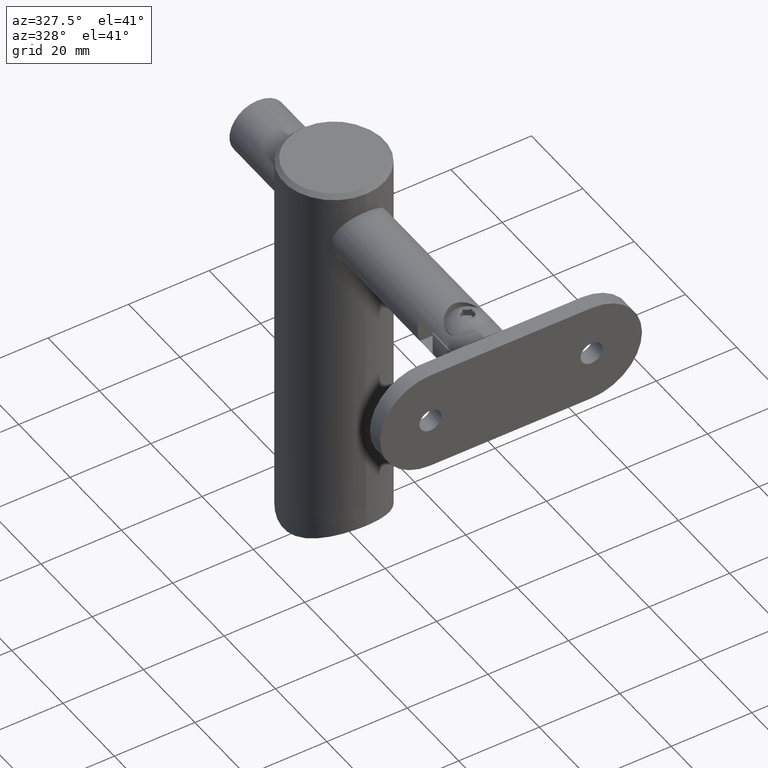
[diagram: clean part render]
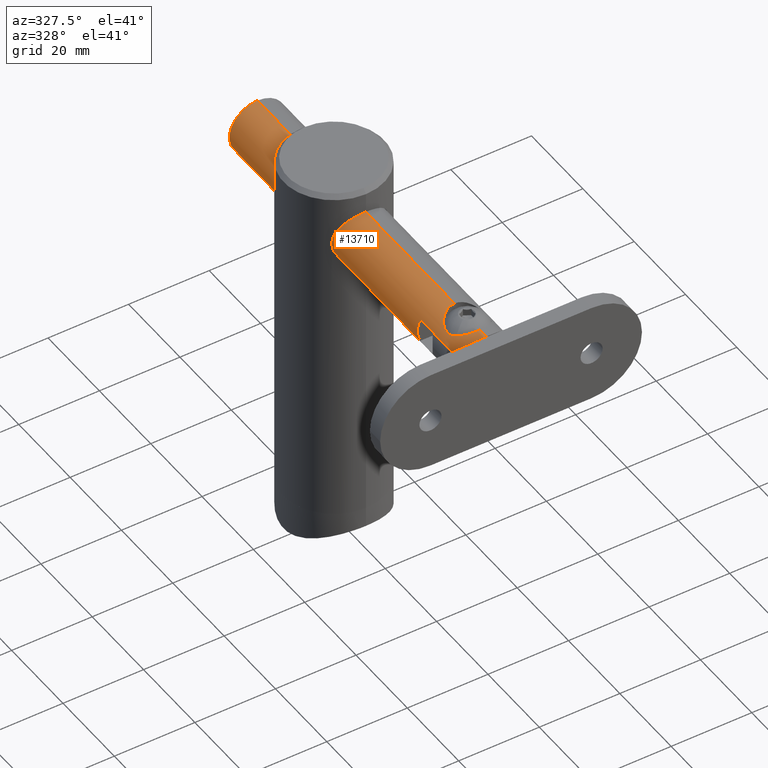
[diagram: same view with one face highlighted and labeled with its STEP entity id]
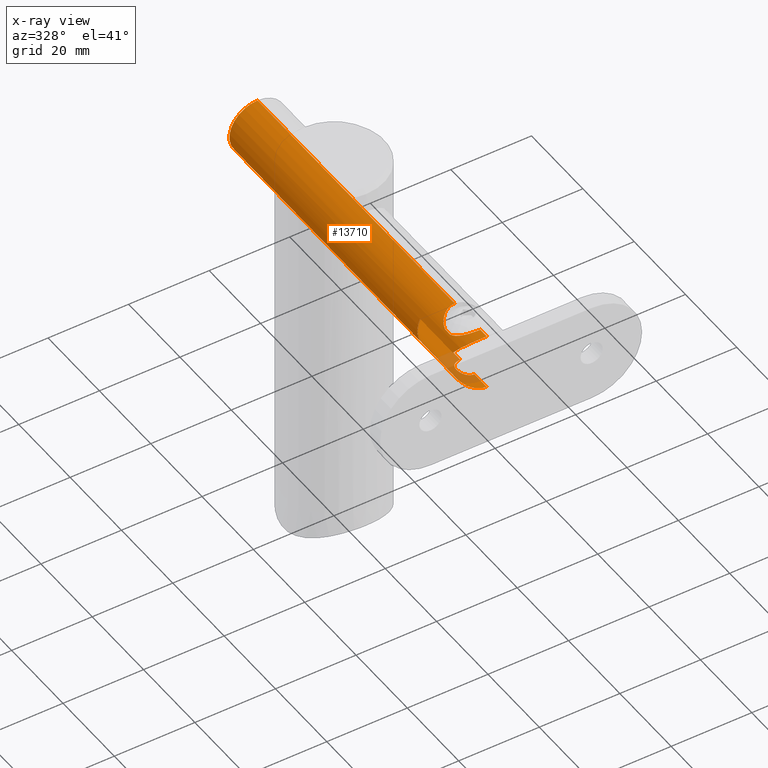
[diagram: x-ray of the same camera — body ghosted, the highlighted face saturated]
A machine part, auxiliary view. The second image highlights one B-rep face of the part: STEP entity #13710.
The next image is the same camera in x-ray: the body ghosted, the highlighted face saturated — about 3% of this face is hidden behind the body in this view.
In plain terms, the highlighted cylindrical surface (edge-blend (fillet) strip) has radius 7 mm, axis along (0, 1, -0).
Its self-contained STEP definition (entity closure, byte-faithful):
#6 = CARTESIAN_POINT ( 'NONE',  ( 3.659128661672553573, 88.58890854043285401, -5.976321217557578613 ) ) ;
#46 = VERTEX_POINT ( 'NONE', #10227 ) ;
#139 = CARTESIAN_POINT ( 'NONE',  ( 3.418568646372840636, 85.65932953649753756, 6.113182993975327051 ) ) ;
#250 = VECTOR ( 'NONE', #19612, 1000.000000000000000 ) ;
#258 = VECTOR ( 'NONE', #5741, 1000.000000000000000 ) ;
#275 = CARTESIAN_POINT ( 'NONE',  ( 4.549074066972394803, 84.09439828439076337, 5.322148887493237446 ) ) ;
#542 = EDGE_CURVE ( 'NONE', #17161, #1582, #8996, .T. ) ;
#594 = CARTESIAN_POINT ( 'NONE',  ( 1.385340874054284077, 79.61775460387927694, -6.863222432922680305 ) ) ;
#864 = CARTESIAN_POINT ( 'NONE',  ( 6.324555320336759934, 92.00000000000000000, -2.999999999999998224 ) ) ;
#939 = CARTESIAN_POINT ( 'NONE',  ( 6.324555320336759046, 92.00000000000000000, 3.000000000000001776 ) ) ;
#1408 = DIRECTION ( 'NONE',  ( 0.000000000000000000, 0.000000000000000000, -1.000000000000000000 ) ) ;
#1416 = CARTESIAN_POINT ( 'NONE',  ( 2.383564362003729009, 83.38312945700687351, -6.582530143251842603 ) ) ;
#1582 = VERTEX_POINT ( 'NONE', #19484 ) ;
#1586 = CARTESIAN_POINT ( 'NONE',  ( 4.928104915875101355, 87.75682723763087267, -5.009702542512038725 ) ) ;
#1640 = CARTESIAN_POINT ( 'NONE',  ( 4.195964117558555806, 88.27331444279705863, 5.612428878305045998 ) ) ;
#1686 = EDGE_CURVE ( 'NONE', #11354, #11957, #1867, .T. ) ;
#1719 = CARTESIAN_POINT ( 'NONE',  ( 2.271900956814452588, 86.46310504795086160, 6.626294361268984190 ) ) ;
#1771 = ORIENTED_EDGE ( 'NONE', *, *, #15771, .T. ) ;
#1811 = VERTEX_POINT ( 'NONE', #3476 ) ;
#1867 = B_SPLINE_CURVE_WITH_KNOTS ( 'NONE', 3,
 ( #19627, #5595, #16367, #6907, #10075, #3768, #594, #13259, #14832, #6978, #8553, #10144, #7185, #4047, #11931, #10414, #4119, #18245 ),
 .UNSPECIFIED., .F., .F.,
 ( 4, 2, 2, 2, 2, 2, 2, 2, 4 ),
 ( 0.008686211219438648781, 0.009228801938659589310, 0.009771392657880529839, 0.01031398337710147037, 0.01085657409632241263, 0.01139916481554335143, 0.01194175553476429369, 0.01248434625398523422, 0.01302693697320617475 ),
 .UNSPECIFIED. ) ;
#2051 = CIRCLE ( 'NONE', #16311, 7.000000000000000000 ) ;
#2075 = CARTESIAN_POINT ( 'NONE',  ( 1.185247000890846447, 77.13349136363962089, 6.905179976153642762 ) ) ;
#2263 = EDGE_CURVE ( 'NONE', #11354, #10373, #2400, .T. ) ;
#2400 = LINE ( 'NONE', #2796, #13826 ) ;
#2427 = CARTESIAN_POINT ( 'NONE',  ( 0.000000000000000000, 92.00000000000000000, -7.000000000000000000 ) ) ;
#2461 = FACE_OUTER_BOUND ( 'NONE', #13560, .T. ) ;
#2543 = AXIS2_PLACEMENT_3D ( 'NONE', #15531, #9162, #20089 ) ;
#2666 = VECTOR ( 'NONE', #8549, 1000.000000000000000 ) ;
#2796 = CARTESIAN_POINT ( 'NONE',  ( 0.000000000000000000, 92.00000000000000000, -7.000000000000000000 ) ) ;
#2805 = CARTESIAN_POINT ( 'NONE',  ( 0.000000000000000000, 73.50000000000000000, 0.000000000000000000 ) ) ;
#3047 = CARTESIAN_POINT ( 'NONE',  ( 4.466189705517495057, 88.11437112860704701, -5.429152875609549511 ) ) ;
#3165 = CARTESIAN_POINT ( 'NONE',  ( 3.658279339947478004, 88.58935219639676006, 5.976827340720561210 ) ) ;
#3211 = CARTESIAN_POINT ( 'NONE',  ( -3.948399029747518167E-20, 79.25000000000000000, -7.000000000000000000 ) ) ;
#3322 = CARTESIAN_POINT ( 'NONE',  ( 4.135962263691839169, 84.82324267745757140, 5.650367532654112068 ) ) ;
#3460 = CARTESIAN_POINT ( 'NONE',  ( -1.002435782524943925E-14, 89.50000000000011369, 7.000000000000127010 ) ) ;
#3476 = CARTESIAN_POINT ( 'NONE',  ( 6.324555320336759046, 73.50000000000000000, -3.000000000000000888 ) ) ;
#3542 = VECTOR ( 'NONE', #13515, 1000.000000000000000 ) ;
#3670 = CARTESIAN_POINT ( 'NONE',  ( 4.425366518078631017, 79.65602365136531660, 5.426733022158265918 ) ) ;
#3740 = CARTESIAN_POINT ( 'NONE',  ( 1.468537120180438471, 77.21149546779142270, 6.850130510910549475 ) ) ;
#3768 = CARTESIAN_POINT ( 'NONE',  ( 1.225103998554012197, 79.53138036620339335, -6.894013193630518899 ) ) ;
#4047 = CARTESIAN_POINT ( 'NONE',  ( 2.607791451429852359, 81.10876419045901287, -6.496532535767448380 ) ) ;
#4119 = CARTESIAN_POINT ( 'NONE',  ( 2.750000000000003109, 81.81877440831331683, -6.437196594791866566 ) ) ;
#4358 = VERTEX_POINT ( 'NONE', #9241 ) ;
#4375 = DIRECTION ( 'NONE',  ( -0.000000000000000000, -1.000000000000000000, -0.000000000000000000 ) ) ;
#4643 = CARTESIAN_POINT ( 'NONE',  ( 6.324555320336759934, 86.22911821679221589, -3.000000000000000000 ) ) ;
#4895 = CARTESIAN_POINT ( 'NONE',  ( 3.367878542067094472, 88.73778121761461080, 6.145840396532842753 ) ) ;
#4916 = CARTESIAN_POINT ( 'NONE',  ( 4.756889550426355306, 83.56607178810689618, 5.137250767919631755 ) ) ;
#4946 = EDGE_CURVE ( 'NONE', #1811, #7993, #14025, .T. ) ;
#5088 = CARTESIAN_POINT ( 'NONE',  ( 0.000000000000000000, 0.2499999999999863443, 0.000000000000000000 ) ) ;
#5143 = CARTESIAN_POINT ( 'NONE',  ( 4.898979485566356651, 80.99999999999998579, 5.000000000000000000 ) ) ;
#5154 = DIRECTION ( 'NONE',  ( 0.000000000000000000, 0.000000000000000000, 1.000000000000000000 ) ) ;
#5595 = CARTESIAN_POINT ( 'NONE',  ( 0.1808286411527179893, 79.25000000000001421, -7.000000000000000000 ) ) ;
#5597 = CARTESIAN_POINT ( 'NONE',  ( 2.184544099842922638, 83.67993846271104985, -6.651229151854177069 ) ) ;
#5741 = DIRECTION ( 'NONE',  ( 0.000000000000000000, 1.000000000000000000, 0.000000000000000000 ) ) ;
#6247 = CARTESIAN_POINT ( 'NONE',  ( 0.3624050733906260535, 89.50000000000005684, 7.000000000000029310 ) ) ;
#6602 = CARTESIAN_POINT ( 'NONE',  ( 2.763207991384557971, 86.17678371752325006, 6.436924150252826493 ) ) ;
#6658 = CARTESIAN_POINT ( 'NONE',  ( 3.975101583808372308, 85.04534998923310241, 5.765754370839145437 ) ) ;
#6676 = CARTESIAN_POINT ( 'NONE',  ( 4.756754455005335558, 80.43374851764012590, 5.137357217387365615 ) ) ;
#6737 = VERTEX_POINT ( 'NONE', #7531 ) ;
#6746 = CARTESIAN_POINT ( 'NONE',  ( 3.616946265727596366, 78.53685500906280481, 5.996925081911288480 ) ) ;
#6895 = LINE ( 'NONE', #864, #2666 ) ;
#6907 = CARTESIAN_POINT ( 'NONE',  ( 0.7204289598580253529, 79.33982706538533591, -6.965122200206522507 ) ) ;
#6978 = CARTESIAN_POINT ( 'NONE',  ( 2.072808109411296229, 80.18390104657881068, -6.687369939972429123 ) ) ;
#6979 = CARTESIAN_POINT ( 'NONE',  ( 8.572527594031473190E-16, 0.2499999999999863443, 7.000000000000000000 ) ) ;
#7185 = CARTESIAN_POINT ( 'NONE',  ( 2.469423849130405912, 80.77655266737600925, -6.550378393328252002 ) ) ;
#7188 = CARTESIAN_POINT ( 'NONE',  ( 1.385025910579861463, 84.38240070461296227, -6.863279530862734568 ) ) ;
#7531 = CARTESIAN_POINT ( 'NONE',  ( 8.572527598450923430E-16, 87.00000000000001421, 7.000000000000000000 ) ) ;
#7589 = CARTESIAN_POINT ( 'NONE',  ( 8.572527594031473190E-16, 92.00000000000000000, 7.000000000000000000 ) ) ;
#7617 = CARTESIAN_POINT ( 'NONE',  ( 1.208881161452609872E-16, 84.75000000000000000, -7.000000000000000000 ) ) ;
#7774 = CARTESIAN_POINT ( 'NONE',  ( 0.7243195160574963376, 89.47426048987152569, -6.971532369139149310 ) ) ;
#7838 = CARTESIAN_POINT ( 'NONE',  ( 1.772087270068707143, 89.29674524768790889, -6.774302909722829114 ) ) ;
#7885 = ORIENTED_EDGE ( 'NONE', *, *, #1686, .T. ) ;
#7993 = VERTEX_POINT ( 'NONE', #14888 ) ;
#8149 = LINE ( 'NONE', #7589, #20277 ) ;
#8172 = CARTESIAN_POINT ( 'NONE',  ( 4.839697460131368700, 83.29042142646889602, 5.058084285293767302 ) ) ;
#8190 = VERTEX_POINT ( 'NONE', #20156 ) ;
#8242 = CARTESIAN_POINT ( 'NONE',  ( 4.898979485566356651, 83.00000000000001421, 5.000000000000000000 ) ) ;
#8338 = DIRECTION ( 'NONE',  ( -0.000000000000000000, 1.000000000000000000, -0.000000000000000000 ) ) ;
#8352 = EDGE_CURVE ( 'NONE', #6737, #46, #10935, .T. ) ;
#8401 = VERTEX_POINT ( 'NONE', #3460 ) ;
#8549 = DIRECTION ( 'NONE',  ( -0.000000000000000000, -1.000000000000000000, -0.000000000000000000 ) ) ;
#8553 = CARTESIAN_POINT ( 'NONE',  ( 2.185402513967127813, 80.32127557866952827, -6.650938152112694013 ) ) ;
#8720 = CARTESIAN_POINT ( 'NONE',  ( 2.750000000000002665, 82.00000000000000000, -6.437196594791864790 ) ) ;
#8766 = CARTESIAN_POINT ( 'NONE',  ( 0.7265665410092077003, 84.67691836908019809, -6.970400329072226064 ) ) ;
#8874 = ORIENTED_EDGE ( 'NONE', *, *, #9371, .T. ) ;
#8927 = EDGE_CURVE ( 'NONE', #18870, #8401, #9570, .T. ) ;
#8996 = LINE ( 'NONE', #2427, #3542 ) ;
#9162 = DIRECTION ( 'NONE',  ( -0.000000000000000000, -1.000000000000000000, -0.000000000000000000 ) ) ;
#9182 = VERTEX_POINT ( 'NONE', #6979 ) ;
#9241 = CARTESIAN_POINT ( 'NONE',  ( 4.898979485566356651, 80.99999999999998579, 5.000000000000000000 ) ) ;
#9272 = CARTESIAN_POINT ( 'NONE',  ( 0.000000000000000000, 89.49999999999998579, -7.000000000000000000 ) ) ;
#9350 = CARTESIAN_POINT ( 'NONE',  ( 2.760850304090685547, 88.99909634490849442, 6.441402460037198630 ) ) ;
#9363 = CARTESIAN_POINT ( 'NONE',  ( 2.445703635153559485, 89.11219177606909625, -6.568226156010881667 ) ) ;
#9371 = EDGE_CURVE ( 'NONE', #11957, #1582, #17114, .T. ) ;
#9424 = LINE ( 'NONE', #16861, #250 ) ;
#9567 = CARTESIAN_POINT ( 'NONE',  ( 4.422770578716177958, 84.34861309511445882, 5.428806269226893910 ) ) ;
#9570 = B_SPLINE_CURVE_WITH_KNOTS ( 'NONE', 3,
 ( #12781, #11125, #12584, #15912, #17363, #20409, #1640, #3165, #4895, #9350, #12521, #20472, #17230, #19025, #6247, #18898 ),
 .UNSPECIFIED., .F., .F.,
 ( 4, 2, 2, 2, 2, 2, 2, 4 ),
 ( 0.01528008297406661421, 0.01744437450515965576, 0.01852652027070617741, 0.01960866603625269905, 0.02069081180179922069, 0.02177295756734574234, 0.02285510333289226051, 0.02393724909843878215 ),
 .UNSPECIFIED. ) ;
#9592 = EDGE_CURVE ( 'NONE', #9182, #10373, #2051, .T. ) ;
#9612 = VECTOR ( 'NONE', #4375, 1000.000000000000000 ) ;
#9850 = CARTESIAN_POINT ( 'NONE',  ( 0.6024487183310490712, 77.02759893988101680, 6.980213212930909350 ) ) ;
#9884 = B_SPLINE_CURVE_WITH_KNOTS ( 'NONE', 3,
 ( #17246, #17173, #7774, #14182, #18842, #7838, #18912, #9363, #10939, #12535, #6, #3047, #1586, #20278, #15732, #4643 ),
 .UNSPECIFIED., .F., .F.,
 ( 4, 2, 2, 2, 2, 2, 2, 4 ),
 ( 0.000000000000000000, 0.001078644177986163482, 0.001617966266979245331, 0.002157288355972326963, 0.003235932533958490228, 0.004314576711944653059, 0.006471865067916996936, 0.008629153423889342547 ),
 .UNSPECIFIED. ) ;
#9979 = CARTESIAN_POINT ( 'NONE',  ( 3.418808725368912782, 78.34083318396096729, 6.113076715920837678 ) ) ;
#10048 = CARTESIAN_POINT ( 'NONE',  ( 4.839560592229767089, 80.70890806048895172, 5.058218387902203794 ) ) ;
#10075 = CARTESIAN_POINT ( 'NONE',  ( 0.8925365274360611556, 79.39263710795151496, -6.944902898415292292 ) ) ;
#10134 = ORIENTED_EDGE ( 'NONE', *, *, #9592, .T. ) ;
#10144 = CARTESIAN_POINT ( 'NONE',  ( 2.383341721230596733, 80.61660487543623788, -6.582601665840309479 ) ) ;
#10227 = CARTESIAN_POINT ( 'NONE',  ( 4.898979485566356651, 83.00000000000001421, 5.000000000000000000 ) ) ;
#10373 = VERTEX_POINT ( 'NONE', #13490 ) ;
#10414 = CARTESIAN_POINT ( 'NONE',  ( 2.731574056740343259, 81.63443882531139195, -6.445152837060486029 ) ) ;
#10472 = ORIENTED_EDGE ( 'NONE', *, *, #542, .F. ) ;
#10846 = CARTESIAN_POINT ( 'NONE',  ( 0.3669985062675649168, 84.74999999999998579, -6.999999999999997335 ) ) ;
#10935 = B_SPLINE_CURVE_WITH_KNOTS ( 'NONE', 3,
 ( #12542, #15868, #11213, #12736, #12935, #19044, #1719, #6602, #16125, #139, #17578, #6658, #3322, #9567, #275, #4916, #8172, #8242 ),
 .UNSPECIFIED., .F., .F.,
 ( 4, 2, 2, 2, 2, 2, 2, 2, 4 ),
 ( 0.007131701435091067180, 0.008020981435921283390, 0.008910261436751500466, 0.009799541437581719278, 0.01068882143841193462, 0.01157810143924215343, 0.01246738144007237051, 0.01335666144090258758, 0.01424594144173280640 ),
 .UNSPECIFIED. ) ;
#10939 = CARTESIAN_POINT ( 'NONE',  ( 2.763309968784135595, 88.99813062283151055, -6.440314778347192792 ) ) ;
#11125 = CARTESIAN_POINT ( 'NONE',  ( 6.059978114377729597, 86.60270361789069682, 3.557777725196004770 ) ) ;
#11143 = CYLINDRICAL_SURFACE ( 'NONE', #2543, 7.000000000000000000 ) ;
#11211 = ORIENTED_EDGE ( 'NONE', *, *, #8352, .T. ) ;
#11213 = CARTESIAN_POINT ( 'NONE',  ( 0.5939647591109609159, 86.97350515733270981, 6.981000427148956078 ) ) ;
#11354 = VERTEX_POINT ( 'NONE', #3211 ) ;
#11632 = AXIS2_PLACEMENT_3D ( 'NONE', #2805, #18667, #1408 ) ;
#11763 = ORIENTED_EDGE ( 'NONE', *, *, #17157, .T. ) ;
#11931 = CARTESIAN_POINT ( 'NONE',  ( 2.660282310959086960, 81.28025711125792441, -6.474904628372831539 ) ) ;
#11933 = CARTESIAN_POINT ( 'NONE',  ( 2.750000000000002665, 82.00000000000000000, -6.437196594791864790 ) ) ;
#11957 = VERTEX_POINT ( 'NONE', #8720 ) ;
#12505 = CARTESIAN_POINT ( 'NONE',  ( 2.660687696061172947, 82.71867064987279150, -6.474739040506646504 ) ) ;
#12521 = CARTESIAN_POINT ( 'NONE',  ( 2.443338531602932129, 89.11291952590281085, 6.569040466156419456 ) ) ;
#12535 = CARTESIAN_POINT ( 'NONE',  ( 3.369122071492489212, 88.73715220791645208, -6.145124318934581886 ) ) ;
#12542 = CARTESIAN_POINT ( 'NONE',  ( 8.572527598450923430E-16, 87.00000000000001421, 7.000000000000000000 ) ) ;
#12584 = CARTESIAN_POINT ( 'NONE',  ( 5.732385048988819065, 86.99481920597060025, 4.064900913478095568 ) ) ;
#12736 = CARTESIAN_POINT ( 'NONE',  ( 1.179668351931416614, 86.86794928738295596, 6.906196035327336169 ) ) ;
#12781 = CARTESIAN_POINT ( 'NONE',  ( 6.324555320336759046, 86.22911821679221589, 3.000000000000000000 ) ) ;
#12935 = CARTESIAN_POINT ( 'NONE',  ( 1.466010853969593075, 86.78903512114446528, 6.850515153504007415 ) ) ;
#13004 = EDGE_CURVE ( 'NONE', #7993, #18870, #14858, .T. ) ;
#13008 = ORIENTED_EDGE ( 'NONE', *, *, #20015, .T. ) ;
#13165 = ORIENTED_EDGE ( 'NONE', *, *, #17619, .T. ) ;
#13259 = CARTESIAN_POINT ( 'NONE',  ( 1.681235390160293663, 79.81649134933330458, -6.796796235284029208 ) ) ;
#13384 = ORIENTED_EDGE ( 'NONE', *, *, #13004, .T. ) ;
#13490 = CARTESIAN_POINT ( 'NONE',  ( 0.000000000000000000, 0.2499999999999863443, -7.000000000000000000 ) ) ;
#13515 = DIRECTION ( 'NONE',  ( -0.000000000000000000, -1.000000000000000000, -0.000000000000000000 ) ) ;
#13560 = EDGE_LOOP ( 'NONE', ( #16305, #15458, #11211, #15918, #13008, #13165, #10134, #14217, #7885, #8874, #10472, #11763, #1771, #14507, #13384 ) ) ;
#13710 = ADVANCED_FACE ( 'NONE', ( #2461 ), #11143, .T. ) ;
#13824 = CARTESIAN_POINT ( 'NONE',  ( 1.680354201538458714, 84.18415650714182163, -6.797007609905186598 ) ) ;
#13826 = VECTOR ( 'NONE', #20103, 1000.000000000000000 ) ;
#13846 = CARTESIAN_POINT ( 'NONE',  ( 6.324555320336759046, 86.22911821679221589, 3.000000000000000000 ) ) ;
#13960 = CARTESIAN_POINT ( 'NONE',  ( 2.071885217933505441, 83.81702347132876696, -6.687637070215357582 ) ) ;
#14025 = CIRCLE ( 'NONE', #11632, 7.000000000000000000 ) ;
#14092 = CARTESIAN_POINT ( 'NONE',  ( 2.750000000000002665, 82.18113010787098460, -6.437196594791866566 ) ) ;
#14182 = CARTESIAN_POINT ( 'NONE',  ( 1.252315490086477690, 89.40021507099456244, -6.889370907210164319 ) ) ;
#14217 = ORIENTED_EDGE ( 'NONE', *, *, #2263, .F. ) ;
#14507 = ORIENTED_EDGE ( 'NONE', *, *, #4946, .T. ) ;
#14635 = B_SPLINE_CURVE_WITH_KNOTS ( 'NONE', 3,
 ( #5143, #10048, #6676, #19326, #3670, #16214, #19463, #6746, #9979, #16270, #17742, #3740, #2075, #9850, #19395, #14740 ),
 .UNSPECIFIED., .F., .F.,
 ( 4, 2, 2, 2, 2, 2, 2, 4 ),
 ( 0.000000000000000000, 0.0008914626793863877343, 0.001782925358772775469, 0.002674388038159163095, 0.003565850717545550937, 0.005348776076318301036, 0.006240238755704684108, 0.007131701435091065445 ),
 .UNSPECIFIED. ) ;
#14734 = VERTEX_POINT ( 'NONE', #17765 ) ;
#14740 = CARTESIAN_POINT ( 'NONE',  ( 8.572527589611736987E-16, 77.00000000000000000, 7.000000000000000000 ) ) ;
#14832 = CARTESIAN_POINT ( 'NONE',  ( 1.819023396515211610, 79.92975780402655062, -6.760813860432659084 ) ) ;
#14858 = LINE ( 'NONE', #939, #258 ) ;
#14888 = CARTESIAN_POINT ( 'NONE',  ( 6.324555320336759046, 73.50000000000000000, 2.999999999999999112 ) ) ;
#15153 = EDGE_CURVE ( 'NONE', #8401, #6737, #8149, .T. ) ;
#15458 = ORIENTED_EDGE ( 'NONE', *, *, #15153, .T. ) ;
#15531 = CARTESIAN_POINT ( 'NONE',  ( 0.000000000000000000, 92.00000000000000000, 0.000000000000000000 ) ) ;
#15624 = CARTESIAN_POINT ( 'NONE',  ( 2.607425521251836908, 82.89216854144116553, -6.496676432563193160 ) ) ;
#15732 = CARTESIAN_POINT ( 'NONE',  ( 6.059853837623833783, 86.60287909778816129, -3.558039723597691051 ) ) ;
#15771 = EDGE_CURVE ( 'NONE', #14734, #1811, #6895, .T. ) ;
#15868 = CARTESIAN_POINT ( 'NONE',  ( 0.2983739865412381453, 87.00000000000001421, 7.000000000000000888 ) ) ;
#15912 = CARTESIAN_POINT ( 'NONE',  ( 5.130245438818746173, 87.56545771636046993, 4.772472753620062846 ) ) ;
#15918 = ORIENTED_EDGE ( 'NONE', *, *, #20283, .T. ) ;
#16125 = CARTESIAN_POINT ( 'NONE',  ( 2.991776029221044020, 86.01579138372814270, 6.333000402555720498 ) ) ;
#16214 = CARTESIAN_POINT ( 'NONE',  ( 4.136608555503010543, 79.17748984043819860, 5.649935377652885116 ) ) ;
#16270 = CARTESIAN_POINT ( 'NONE',  ( 2.776700698999283734, 77.80465105370051049, 6.443739082997176126 ) ) ;
#16273 = LINE ( 'NONE', #19942, #9612 ) ;
#16305 = ORIENTED_EDGE ( 'NONE', *, *, #8927, .T. ) ;
#16311 = AXIS2_PLACEMENT_3D ( 'NONE', #5088, #8338, #5154 ) ;
#16367 = CARTESIAN_POINT ( 'NONE',  ( 0.3640389060539200861, 79.26814831970375508, -6.992812082766914905 ) ) ;
#16657 = CARTESIAN_POINT ( 'NONE',  ( 1.819941318226131699, 84.06932265484729783, -6.760548168412334746 ) ) ;
#16861 = CARTESIAN_POINT ( 'NONE',  ( 8.572527594031473190E-16, 92.00000000000000000, 7.000000000000000000 ) ) ;
#17076 = CARTESIAN_POINT ( 'NONE',  ( 1.228007877547679705, 84.46724935423829095, -6.893518083982370648 ) ) ;
#17114 = B_SPLINE_CURVE_WITH_KNOTS ( 'NONE', 3,
 ( #11933, #14092, #20322, #12505, #15624, #20249, #1416, #5597, #13960, #16657, #13824, #7188, #17076, #8766, #10846, #7617 ),
 .UNSPECIFIED., .F., .F.,
 ( 4, 2, 2, 2, 2, 2, 2, 4 ),
 ( 0.01302693697320617475, 0.01356924181319919299, 0.01411154665319221124, 0.01465385149318522949, 0.01519615633317824774, 0.01573846117317126425, 0.01628076601316428423, 0.01736537569315032073 ),
 .UNSPECIFIED. ) ;
#17157 = EDGE_CURVE ( 'NONE', #17161, #14734, #9884, .T. ) ;
#17161 = VERTEX_POINT ( 'NONE', #9272 ) ;
#17173 = CARTESIAN_POINT ( 'NONE',  ( 0.3657348725075472151, 89.49999999999995737, -6.999999999999999112 ) ) ;
#17230 = CARTESIAN_POINT ( 'NONE',  ( 1.425249487810472449, 89.37613880936714850, 6.862656536145074426 ) ) ;
#17246 = CARTESIAN_POINT ( 'NONE',  ( 0.000000000000000000, 89.49999999999998579, -7.000000000000000000 ) ) ;
#17363 = CARTESIAN_POINT ( 'NONE',  ( 4.912691304421852756, 87.75114127699465882, 4.996393966555907618 ) ) ;
#17578 = CARTESIAN_POINT ( 'NONE',  ( 3.617236538122536427, 85.46282962124750782, 5.996745441797393994 ) ) ;
#17619 = EDGE_CURVE ( 'NONE', #8190, #9182, #9424, .T. ) ;
#17742 = CARTESIAN_POINT ( 'NONE',  ( 2.294863882844582648, 77.51902828925072697, 6.637556547302425614 ) ) ;
#17765 = CARTESIAN_POINT ( 'NONE',  ( 6.324555320336759934, 86.22911821679221589, -3.000000000000000000 ) ) ;
#18245 = CARTESIAN_POINT ( 'NONE',  ( 2.750000000000002665, 82.00000000000000000, -6.437196594791864790 ) ) ;
#18667 = DIRECTION ( 'NONE',  ( -0.000000000000000000, -1.000000000000000000, -0.000000000000000000 ) ) ;
#18842 = CARTESIAN_POINT ( 'NONE',  ( 1.426658960544405108, 89.36959981472375603, -6.855371427991128641 ) ) ;
#18870 = VERTEX_POINT ( 'NONE', #13846 ) ;
#18898 = CARTESIAN_POINT ( 'NONE',  ( -1.002435782524943925E-14, 89.50000000000011369, 7.000000000000127010 ) ) ;
#18912 = CARTESIAN_POINT ( 'NONE',  ( 1.944006344311750567, 89.25423532666263782, -6.726931292212884550 ) ) ;
#19025 = CARTESIAN_POINT ( 'NONE',  ( 0.7198414329661798616, 89.47471083948295245, 6.972031206684600413 ) ) ;
#19044 = CARTESIAN_POINT ( 'NONE',  ( 2.009673372085208687, 86.58751110658531047, 6.711181612046894784 ) ) ;
#19326 = CARTESIAN_POINT ( 'NONE',  ( 4.549983960369624825, 79.90775178059899986, 5.321353031385375409 ) ) ;
#19395 = CARTESIAN_POINT ( 'NONE',  ( 0.2991063256262651571, 77.00000000000000000, 7.000000000000002665 ) ) ;
#19463 = CARTESIAN_POINT ( 'NONE',  ( 3.975033919775524893, 78.95454784078815180, 5.765805760156297310 ) ) ;
#19484 = CARTESIAN_POINT ( 'NONE',  ( 1.208881161452609872E-16, 84.75000000000000000, -7.000000000000000000 ) ) ;
#19612 = DIRECTION ( 'NONE',  ( -0.000000000000000000, -1.000000000000000000, -0.000000000000000000 ) ) ;
#19627 = CARTESIAN_POINT ( 'NONE',  ( -3.948399029747518167E-20, 79.25000000000000000, -7.000000000000000000 ) ) ;
#19942 = CARTESIAN_POINT ( 'NONE',  ( 4.898979485566357539, 92.00000000000000000, 4.999999999999999112 ) ) ;
#20015 = EDGE_CURVE ( 'NONE', #4358, #8190, #14635, .T. ) ;
#20089 = DIRECTION ( 'NONE',  ( 0.000000000000000000, 0.000000000000000000, -1.000000000000000000 ) ) ;
#20103 = DIRECTION ( 'NONE',  ( -0.000000000000000000, -1.000000000000000000, -0.000000000000000000 ) ) ;
#20156 = CARTESIAN_POINT ( 'NONE',  ( 8.572527589611736987E-16, 77.00000000000000000, 7.000000000000000000 ) ) ;
#20161 = DIRECTION ( 'NONE',  ( -0.000000000000000000, -1.000000000000000000, -0.000000000000000000 ) ) ;
#20249 = CARTESIAN_POINT ( 'NONE',  ( 2.469543876968340879, 83.22310489940183231, -6.550330186946731637 ) ) ;
#20277 = VECTOR ( 'NONE', #20161, 1000.000000000000000 ) ;
#20278 = CARTESIAN_POINT ( 'NONE',  ( 5.730922895244006554, 86.99640012707611447, -4.066922718111563029 ) ) ;
#20283 = EDGE_CURVE ( 'NONE', #46, #4358, #16273, .T. ) ;
#20322 = CARTESIAN_POINT ( 'NONE',  ( 2.732280569905924494, 82.36109473310260398, -6.444854346371745812 ) ) ;
#20409 = CARTESIAN_POINT ( 'NONE',  ( 4.445877329669893463, 88.10471535542845345, 5.415963745364775761 ) ) ;
#20472 = CARTESIAN_POINT ( 'NONE',  ( 1.776726589457548133, 89.30153823742230657, 6.779781593261737349 ) ) ;